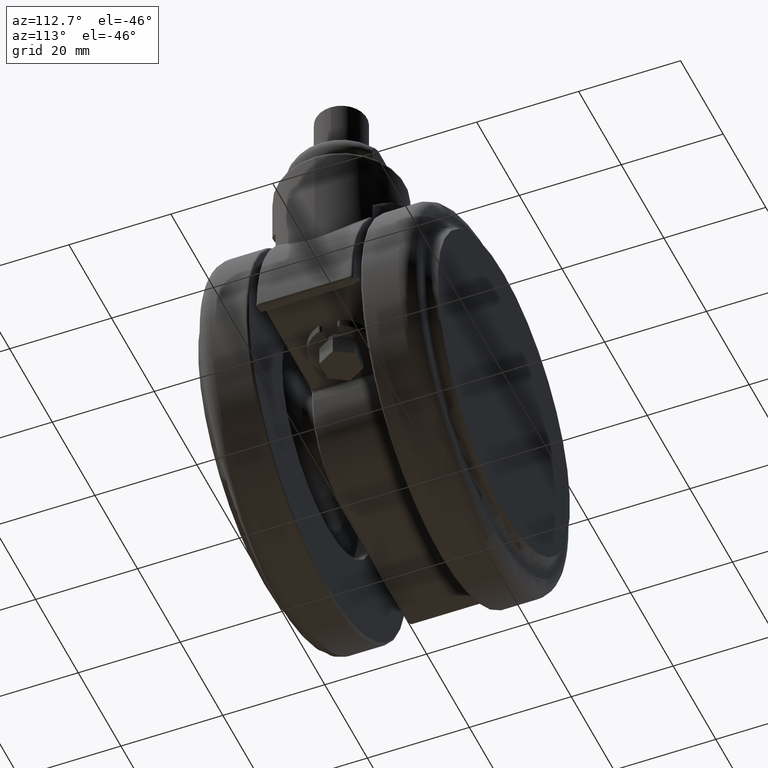
[diagram: clean part render]
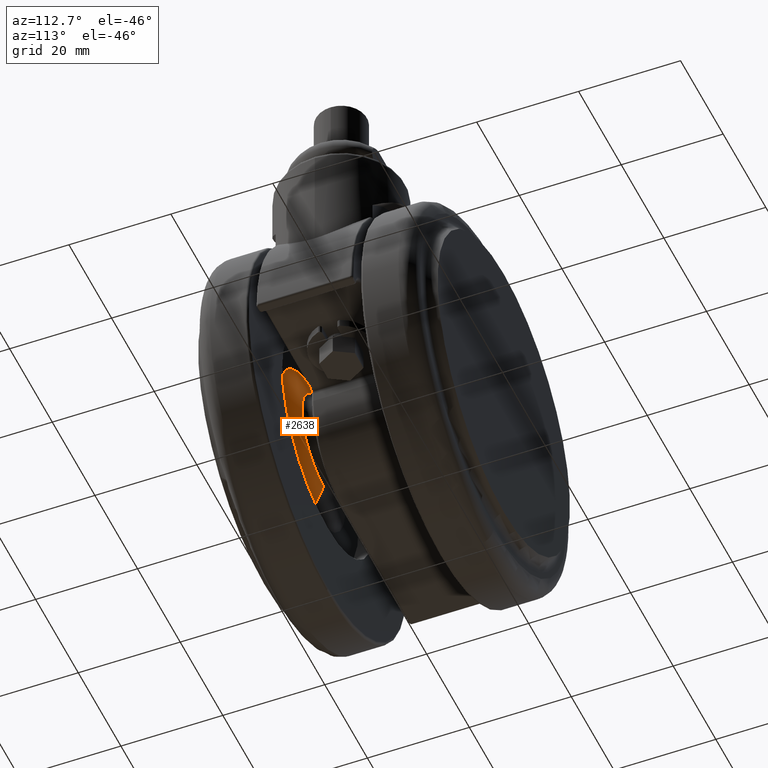
[diagram: same view with one face highlighted and labeled with its STEP entity id]
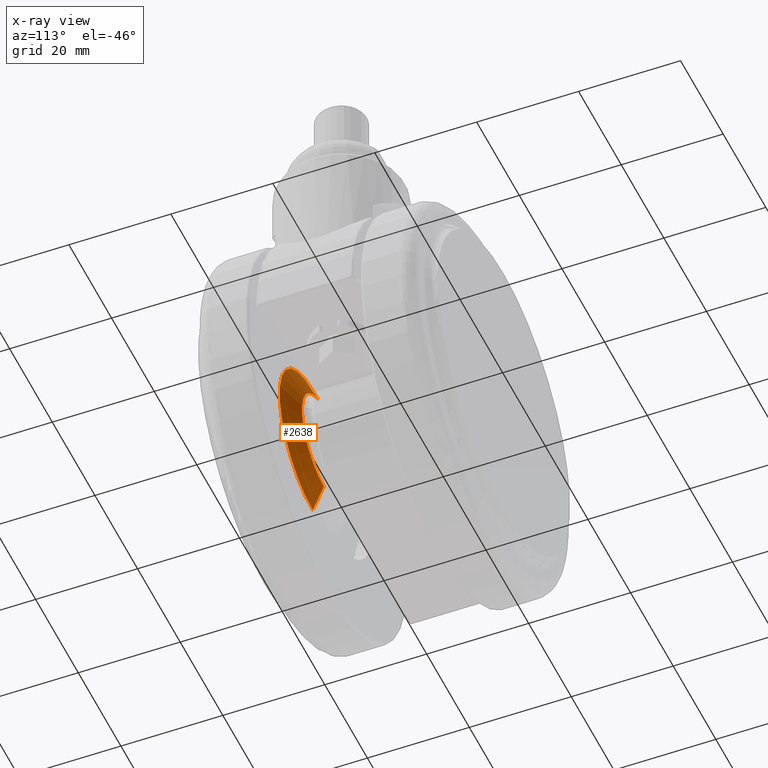
[diagram: x-ray of the same camera — body ghosted, the highlighted face saturated]
A machine part, auxiliary view. The second image highlights one B-rep face of the part: STEP entity #2638.
The next image is the same camera in x-ray: the body ghosted, the highlighted face saturated — about 0% of this face is hidden behind the body in this view.
In plain terms, the highlighted conical surface has half-angle 67.536 deg.
Its self-contained STEP definition (entity closure, byte-faithful):
#4 = CARTESIAN_POINT ( 'NONE',  ( -20.00000000000000000, -11.82335740127932100, -40.50000000000000000 ) ) ;
#113 = DIRECTION ( 'NONE',  ( 0.0000000000000000000, 0.0000000000000000000, -1.000000000000000000 ) ) ;
#127 = EDGE_CURVE ( 'NONE', #2883, #3878, #884, .T. ) ;
#418 = DIRECTION ( 'NONE',  ( 0.0000000000000000000, -1.000000000000000000, 0.0000000000000000000 ) ) ;
#497 = CIRCLE ( 'NONE', #2735, 15.50000000000000000 ) ;
#508 = AXIS2_PLACEMENT_3D ( 'NONE', #2256, #418, #113 ) ;
#600 = DIRECTION ( 'NONE',  ( 0.0000000000000000000, 0.0000000000000000000, -1.000000000000000000 ) ) ;
#649 = DIRECTION ( 'NONE',  ( 0.0000000000000000000, -1.000000000000000000, 0.0000000000000000000 ) ) ;
#735 = CARTESIAN_POINT ( 'NONE',  ( -20.00000000000000000, -14.00000000000000000, -40.50000000000000000 ) ) ;
#745 = ORIENTED_EDGE ( 'NONE', *, *, #3524, .F. ) ;
#870 = VECTOR ( 'NONE', #3517, 1000.000000000000100 ) ;
#884 = CIRCLE ( 'NONE', #3632, 10.23579126016620200 ) ;
#1007 = ORIENTED_EDGE ( 'NONE', *, *, #127, .T. ) ;
#1026 = EDGE_CURVE ( 'NONE', #2883, #2721, #1048, .T. ) ;
#1035 = DIRECTION ( 'NONE',  ( 0.0000000000000000000, 0.0000000000000000000, -1.000000000000000000 ) ) ;
#1048 = LINE ( 'NONE', #3481, #3291 ) ;
#1055 = EDGE_CURVE ( 'NONE', #3878, #3672, #2498, .T. ) ;
#1147 = EDGE_LOOP ( 'NONE', ( #1007, #2908, #745, #1351 ) ) ;
#1351 = ORIENTED_EDGE ( 'NONE', *, *, #1026, .F. ) ;
#1474 = CONICAL_SURFACE ( 'NONE', #508, 15.50000000000000000, 1.178723936475072600 ) ;
#1994 = CARTESIAN_POINT ( 'NONE',  ( -20.00000000000000000, -14.00000000000000000, -56.00000000000000000 ) ) ;
#2256 = CARTESIAN_POINT ( 'NONE',  ( -20.00000000000000000, -14.00000000000000000, -40.50000000000000000 ) ) ;
#2391 = FACE_OUTER_BOUND ( 'NONE', #1147, .T. ) ;
#2498 = LINE ( 'NONE', #2643, #870 ) ;
#2638 = ADVANCED_FACE ( 'NONE', ( #2391 ), #1474, .T. ) ;
#2643 = CARTESIAN_POINT ( 'NONE',  ( -19.99999999999999600, -14.00000000000000000, -25.00000000000000000 ) ) ;
#2721 = VERTEX_POINT ( 'NONE', #1994 ) ;
#2735 = AXIS2_PLACEMENT_3D ( 'NONE', #735, #2871, #1035 ) ;
#2741 = CARTESIAN_POINT ( 'NONE',  ( -20.00000000000000000, -11.82335740127932100, -50.73579126016620200 ) ) ;
#2871 = DIRECTION ( 'NONE',  ( 0.0000000000000000000, -1.000000000000000000, 0.0000000000000000000 ) ) ;
#2883 = VERTEX_POINT ( 'NONE', #2741 ) ;
#2908 = ORIENTED_EDGE ( 'NONE', *, *, #1055, .T. ) ;
#3081 = CARTESIAN_POINT ( 'NONE',  ( -19.99999999999999600, -11.82335740127932100, -30.26420873983379800 ) ) ;
#3125 = DIRECTION ( 'NONE',  ( 0.0000000000000000000, -0.3821043699168795200, -0.9241191754803188600 ) ) ;
#3256 = CARTESIAN_POINT ( 'NONE',  ( -19.99999999999999600, -14.00000000000000000, -25.00000000000000000 ) ) ;
#3291 = VECTOR ( 'NONE', #3125, 1000.000000000000100 ) ;
#3481 = CARTESIAN_POINT ( 'NONE',  ( -20.00000000000000000, -14.00000000000000000, -56.00000000000000000 ) ) ;
#3517 = DIRECTION ( 'NONE',  ( 1.131719590282663600E-016, -0.3821043699168795200, 0.9241191754803188600 ) ) ;
#3524 = EDGE_CURVE ( 'NONE', #2721, #3672, #497, .T. ) ;
#3632 = AXIS2_PLACEMENT_3D ( 'NONE', #4, #649, #600 ) ;
#3672 = VERTEX_POINT ( 'NONE', #3256 ) ;
#3878 = VERTEX_POINT ( 'NONE', #3081 ) ;